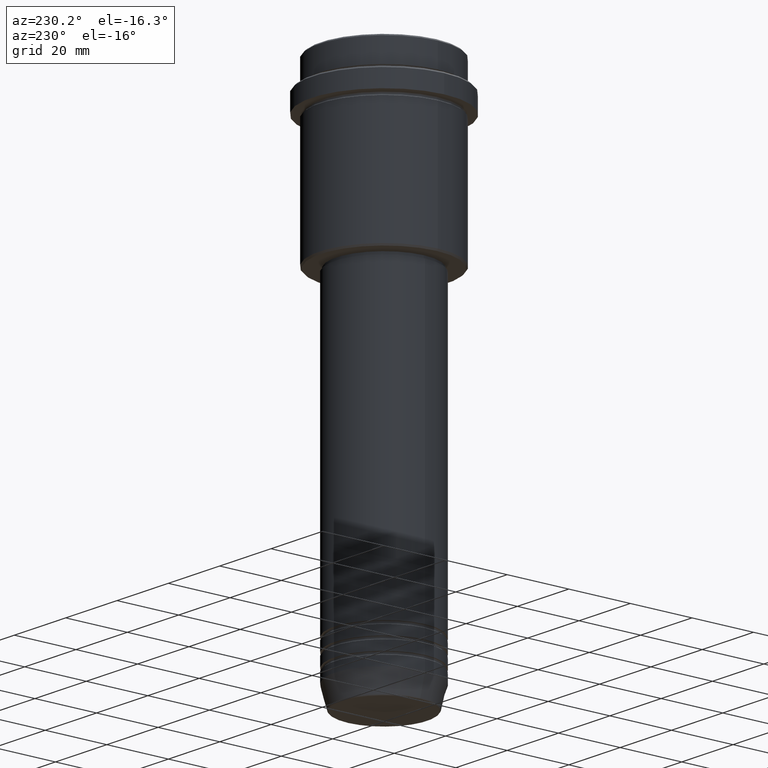
[diagram: clean part render]
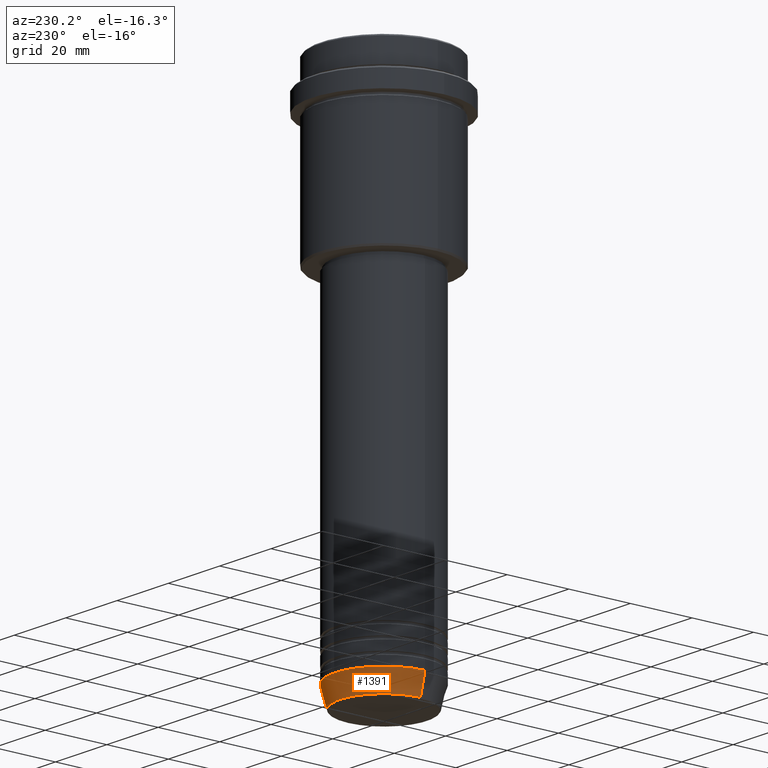
[diagram: same view with one face highlighted and labeled with its STEP entity id]
A machine part, auxiliary view. The second image highlights one B-rep face of the part: STEP entity #1391.
In plain terms, the highlighted conical surface has half-angle 15 deg.
Its self-contained STEP definition (entity closure, byte-faithful):
#45 = CARTESIAN_POINT ( 'NONE',  ( -16.00000000000000000, 1.959434878635765131E-15, -162.9999999999999716 ) ) ;
#80 = CARTESIAN_POINT ( 'NONE',  ( -16.00000000000000000, 1.959434878635765131E-15, -162.9999999999999716 ) ) ;
#130 = ORIENTED_EDGE ( 'NONE', *, *, #1397, .T. ) ;
#176 = CARTESIAN_POINT ( 'NONE',  ( 0.000000000000000000, 0.000000000000000000, -162.9999999999999716 ) ) ;
#225 = CIRCLE ( 'NONE', #724, 16.00000000000000000 ) ;
#326 = CIRCLE ( 'NONE', #1134, 14.22365507213718772 ) ;
#365 = EDGE_CURVE ( 'NONE', #893, #1082, #931, .T. ) ;
#426 = ORIENTED_EDGE ( 'NONE', *, *, #481, .F. ) ;
#481 = EDGE_CURVE ( 'NONE', #1082, #593, #225, .T. ) ;
#520 = AXIS2_PLACEMENT_3D ( 'NONE', #176, #1164, #1385 ) ;
#540 = EDGE_CURVE ( 'NONE', #893, #850, #326, .T. ) ;
#593 = VERTEX_POINT ( 'NONE', #45 ) ;
#595 = FACE_OUTER_BOUND ( 'NONE', #817, .T. ) ;
#616 = DIRECTION ( 'NONE',  ( -0.2588190451025213501, 3.169619151431772337E-17, 0.9659258262890680902 ) ) ;
#716 = DIRECTION ( 'NONE',  ( -0.000000000000000000, -0.000000000000000000, 1.000000000000000000 ) ) ;
#724 = AXIS2_PLACEMENT_3D ( 'NONE', #807, #716, #1250 ) ;
#807 = CARTESIAN_POINT ( 'NONE',  ( 0.000000000000000000, 0.000000000000000000, -162.9999999999999716 ) ) ;
#817 = EDGE_LOOP ( 'NONE', ( #962, #130, #426, #1344 ) ) ;
#834 = LINE ( 'NONE', #80, #1040 ) ;
#850 = VERTEX_POINT ( 'NONE', #921 ) ;
#893 = VERTEX_POINT ( 'NONE', #1234 ) ;
#900 = CONICAL_SURFACE ( 'NONE', #520, 16.00000000000000000, 0.2617993877991500740 ) ;
#921 = CARTESIAN_POINT ( 'NONE',  ( -14.22365507213718772, 1.850665122131323337E-15, -169.6294095225512422 ) ) ;
#931 = LINE ( 'NONE', #1023, #1111 ) ;
#933 = CARTESIAN_POINT ( 'NONE',  ( 0.000000000000000000, 0.000000000000000000, -169.6294095225512422 ) ) ;
#962 = ORIENTED_EDGE ( 'NONE', *, *, #540, .T. ) ;
#1023 = CARTESIAN_POINT ( 'NONE',  ( 16.00000000000000000, 0.000000000000000000, -162.9999999999999716 ) ) ;
#1024 = DIRECTION ( 'NONE',  ( -0.000000000000000000, -0.000000000000000000, 1.000000000000000000 ) ) ;
#1040 = VECTOR ( 'NONE', #616, 1000.000000000000000 ) ;
#1082 = VERTEX_POINT ( 'NONE', #1407 ) ;
#1111 = VECTOR ( 'NONE', #1347, 1000.000000000000000 ) ;
#1134 = AXIS2_PLACEMENT_3D ( 'NONE', #933, #1024, #1358 ) ;
#1164 = DIRECTION ( 'NONE',  ( -0.000000000000000000, -0.000000000000000000, 1.000000000000000000 ) ) ;
#1234 = CARTESIAN_POINT ( 'NONE',  ( 14.22365507213718772, 0.000000000000000000, -169.6294095225512422 ) ) ;
#1250 = DIRECTION ( 'NONE',  ( 1.000000000000000000, 0.000000000000000000, 0.000000000000000000 ) ) ;
#1344 = ORIENTED_EDGE ( 'NONE', *, *, #365, .F. ) ;
#1347 = DIRECTION ( 'NONE',  ( 0.2588190451025213501, 0.000000000000000000, 0.9659258262890680902 ) ) ;
#1358 = DIRECTION ( 'NONE',  ( 1.000000000000000000, 0.000000000000000000, 0.000000000000000000 ) ) ;
#1385 = DIRECTION ( 'NONE',  ( 1.000000000000000000, 0.000000000000000000, 0.000000000000000000 ) ) ;
#1391 = ADVANCED_FACE ( 'NONE', ( #595 ), #900, .T. ) ;
#1397 = EDGE_CURVE ( 'NONE', #850, #593, #834, .T. ) ;
#1407 = CARTESIAN_POINT ( 'NONE',  ( 16.00000000000000000, 0.000000000000000000, -162.9999999999999716 ) ) ;